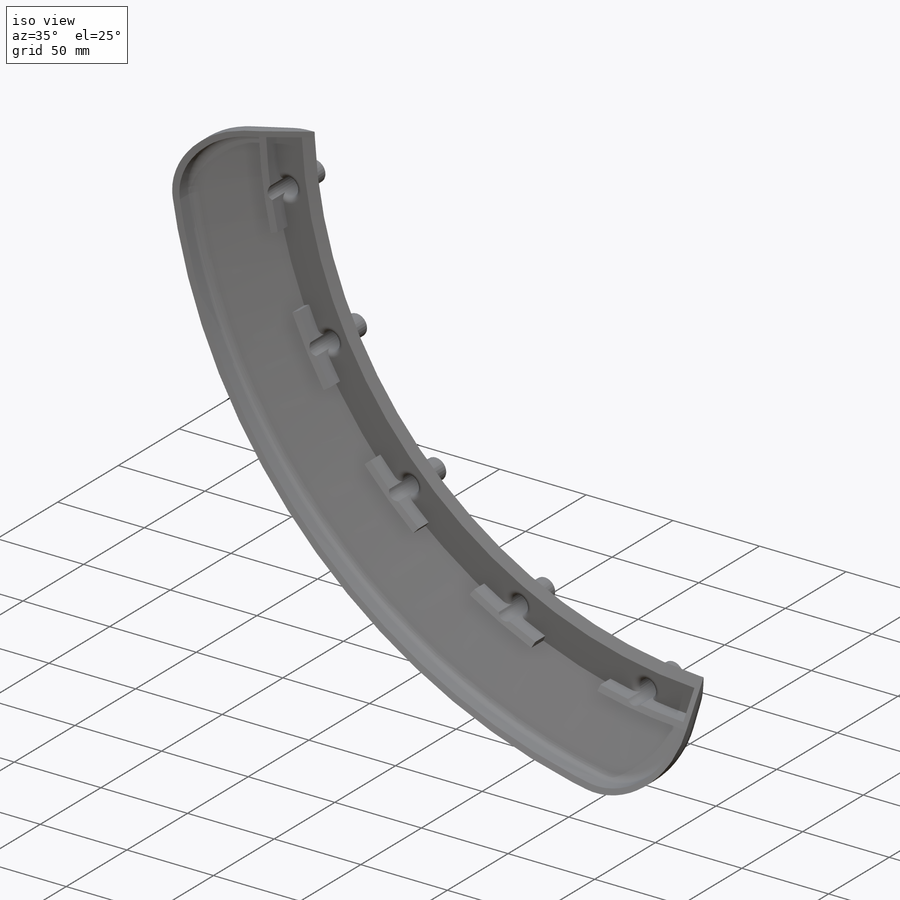
[diagram: iso view]
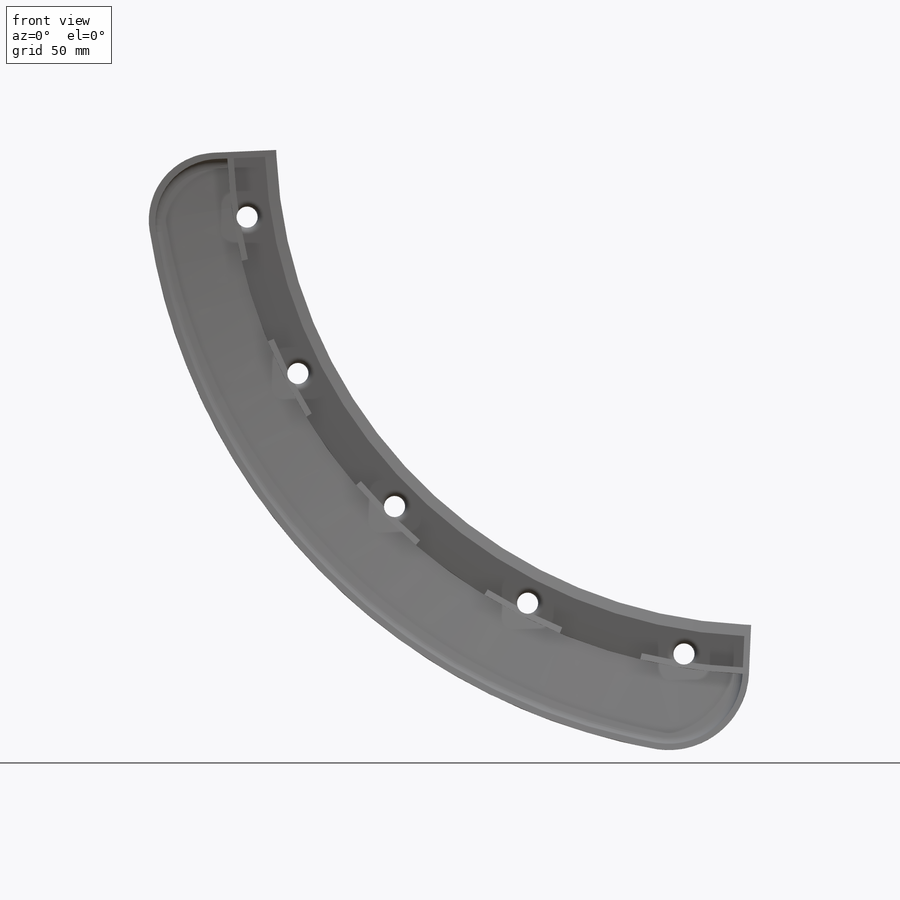
[diagram: front view]
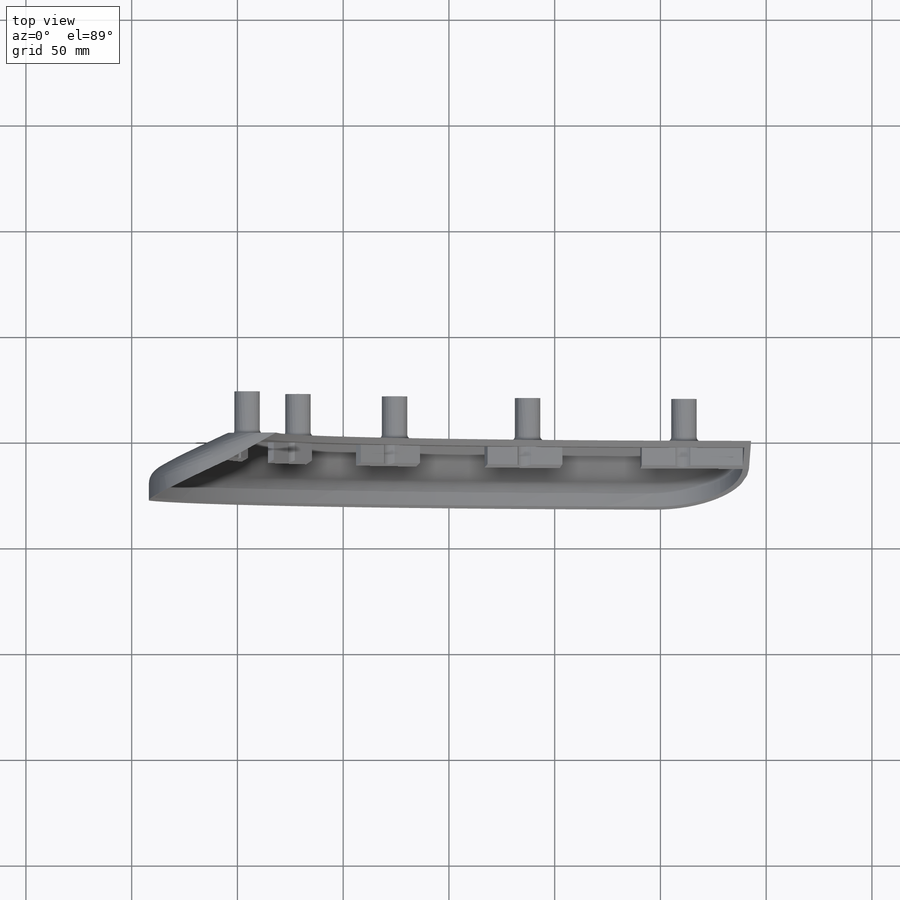
[diagram: top view]
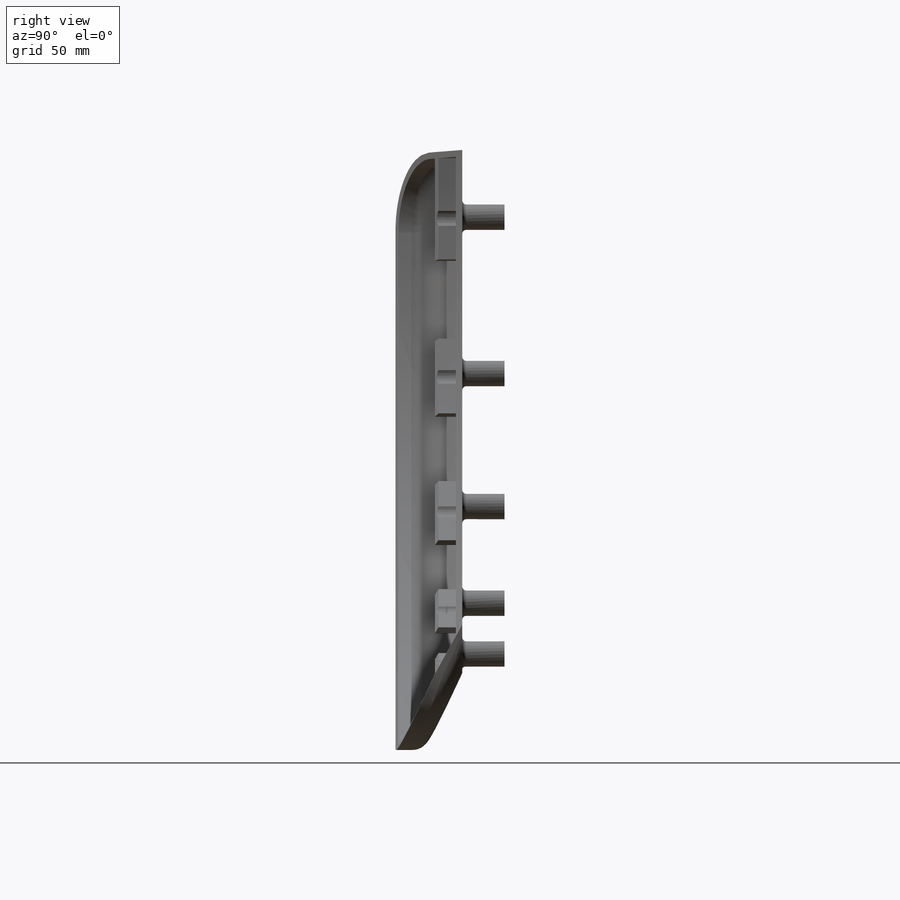
[diagram: right view]
SOLIDWORKS PART (.sldprt)
format: sldprt  version: not decoded by parser v0  size: 567,808 bytes
history: native  units: mm
features: fillet x8, sketch x7, extrude x3, plane x2, revolve x2, cut_extrude x2, pattern_circular x2, material x1 (+11 scaffold rows collapsed)
feature tree (38):
  scaffold x11  (default folders/planes/origin — collapsed)
  material  "Material <not specified>"
  plane  "Plane1"
  sketch  "Sketch1"  dims[D1=231.75mm D2=12.9mm D3=255.0mm D4=3.0mm D5=3.0mm]
  revolve  "Revolve1"  Angle=85deg
  sketch  "Sketch2"  dims[c1.D1=23.25mm c2.D1=25.0deg c2.D2=3.0mm c2.D3=~40.161601mm c3.D3=~0.672485deg c4.D3=~40.161601mm c5.D3=~0.672485deg c6.D3=~40.161601mm c7.D3=~179.327515deg c8.D3=2.5mm c8.D4=40.0mm]
  revolve  "Revolve2"  Angle=85deg
  sketch  "Sketch3"
  extrude  "Boss-Extrude1"  Depth=3mm
  fillet  "Fillet1"  Radius=30mm
  fillet  "Fillet2"  Radius=32mm
  sketch  "Sketch4"
  extrude  "Boss-Extrude2"  Depth=3mm
  fillet  "Fillet3"  Radius=35mm
  fillet  "Fillet4"  Radius=38mm
  fillet  "Fillet5"  Radius=5mm
  fillet  "Fillet6"  Radius=8mm
  sketch  "Sketch5"  dims[c1.D2=12.0mm c1.D1=248.477mm c1.D3=~246.874166mm c2.D3=81.25deg c3.D3=248.477mm c4.D3=9.0deg]
  extrude  "Boss-Extrude3"  Depth=20mm
  sketch  "Sketch6"  dims[D1=10.0mm]
  cut_extrude  "Cut-Extrude1"  [1 undecoded]
  fillet  "Fillet7"  Radius=3mm
  fillet  "Fillet8"  Radius=2mm
  pattern_circular  "CirPattern1"  Count=5 Angle=18deg
  plane  "Plane2"  Offset=25mm
  sketch  "Sketch7"  dims[c1.D1=3.0mm c2.D1=9.0deg c2.D2=252.0mm c3.D2=90.0deg c4.D2=~228.14508mm c5.D2=67.5deg]
  cut_extrude  "Cut-Extrude2"  [1 undecoded]
  pattern_circular  "CirPattern2"  Count=4 Angle=18deg
decode coverage: 20 of 24 modeling features carry decoded parameters
note: ~ marks probable driven/reference dimensions
note: 2 parameter values undecoded
note: suppression state not decoded; provenance and decode notes live in map.json
